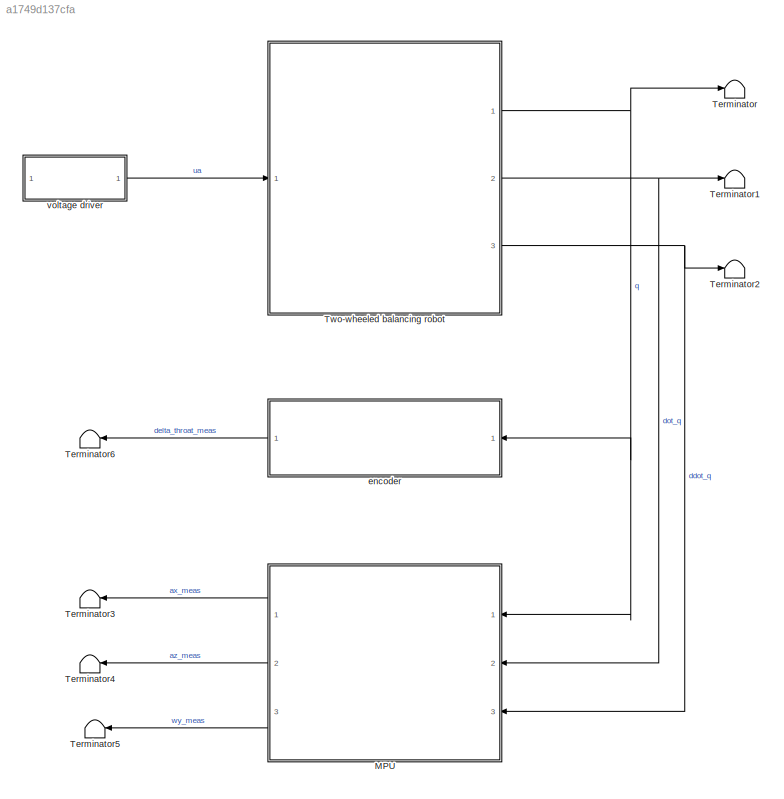
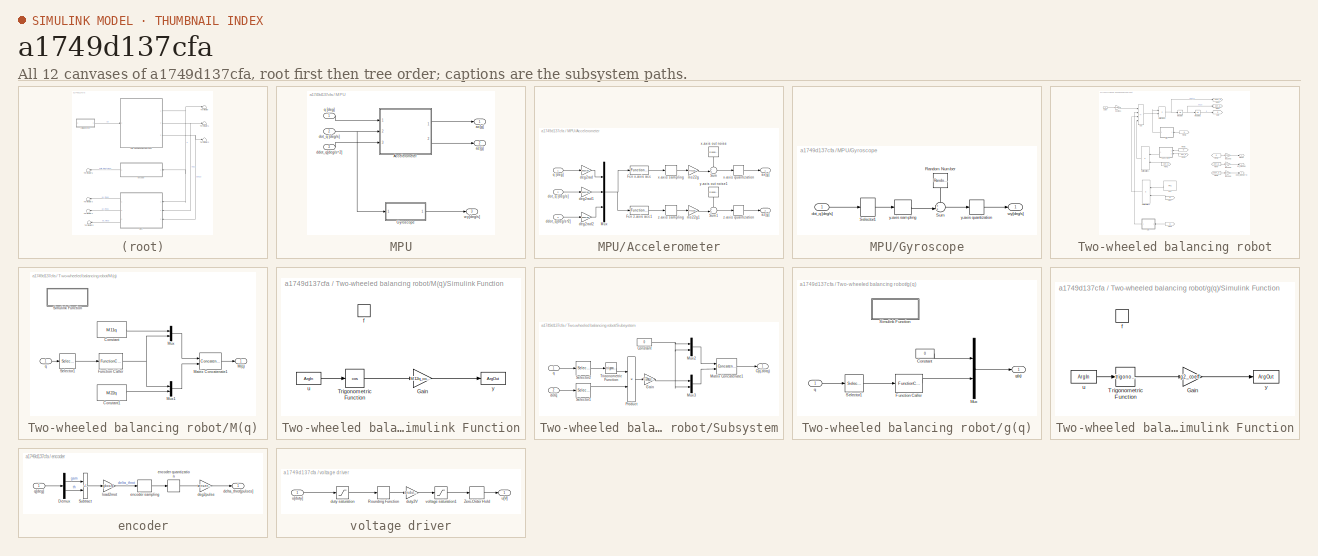
[diagram: thumbnail index - all 12 canvases of the model, root first then tree order]
MODEL slx_a1749d137cfa
KIND model
CONFIG AbsTol = auto
CONFIG EnableMultiTasking = off
CONFIG FixedStep = auto
CONFIG MaxStep = auto
CONFIG MinStep = auto
CONFIG RelTol = 1e-3
CONFIG SampleTimeConstraint = Unconstrained
CONFIG SolverName = VariableStepAuto
CONFIG StartTime = 0.0
CONFIG StopTime = 10.0
BLOCK [SubSystem] MPU
  Ports = [3, 3]
  RequestExecContextInheritance = off
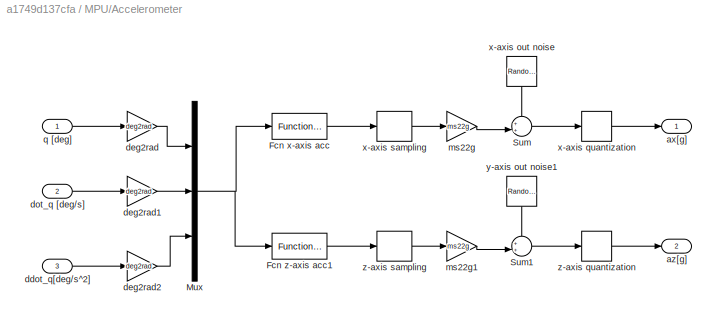
BLOCK [SubSystem] MPU/Accelerometer
  Ports = [3, 2]
  RequestExecContextInheritance = off
BLOCK [FunctionCaller] MPU/Accelerometer/Fcn x-axis acc
  FunctionPrototype = y = f(u)
  InputArgumentSpecifications = <Enter example>
  OutputArgumentSpecifications = <Enter example>
  Ports = [1, 1]
BLOCK [FunctionCaller] MPU/Accelerometer/Fcn z-axis acc1
  FunctionPrototype = y = f(u)
  InputArgumentSpecifications = <Enter example>
  OutputArgumentSpecifications = <Enter example>
  Ports = [1, 1]
BLOCK [Mux] MPU/Accelerometer/Mux
  DisplayOption = bar
  Inputs = 3
  Ports = [3, 1]
BLOCK [Sum] MPU/Accelerometer/Sum
  Inputs = ++|
  Ports = [2, 1]
BLOCK [Sum] MPU/Accelerometer/Sum1
  Inputs = ++|
  Ports = [2, 1]
BLOCK [Outport] MPU/Accelerometer/ax[g]
BLOCK [Outport] MPU/Accelerometer/az[g]
  Port = 2
BLOCK [Inport] MPU/Accelerometer/ddot_q[deg//s^2]
  Port = 3
BLOCK [Gain] MPU/Accelerometer/deg2rad
  Gain = deg2rad
BLOCK [Gain] MPU/Accelerometer/deg2rad1
  Gain = deg2rad
BLOCK [Gain] MPU/Accelerometer/deg2rad2
  Gain = deg2rad
BLOCK [Inport] MPU/Accelerometer/dot_q [deg//s]
  Port = 2
BLOCK [Gain] MPU/Accelerometer/ms22g
  Gain = ms22g
BLOCK [Gain] MPU/Accelerometer/ms22g1
  Gain = ms22g
BLOCK [Inport] MPU/Accelerometer/q [deg]
BLOCK [RandomNumber] MPU/Accelerometer/x-axis out noise
  NameLocation = left
  SampleTime = Ts
  Variance = sens.mpu.acc.noisevar
BLOCK [Quantizer] MPU/Accelerometer/x-axis quantization
  QuantizationInterval = sens.mpu.acc.LSB2g
BLOCK [ZeroOrderHold] MPU/Accelerometer/x-axis sampling
  SampleTime = Ts
BLOCK [RandomNumber] MPU/Accelerometer/y-axis out noise1
  NameLocation = left
  SampleTime = Ts
  Variance = sens.mpu.acc.noisevar
BLOCK [Quantizer] MPU/Accelerometer/z-axis quantization
  QuantizationInterval = sens.mpu.acc.LSB2g
BLOCK [ZeroOrderHold] MPU/Accelerometer/z-axis sampling
  SampleTime = Ts
BLOCK [SubSystem] MPU/Gyroscope
  Ports = [1, 1]
  RequestExecContextInheritance = off
BLOCK [RandomNumber] MPU/Gyroscope/Random Number
  NameLocation = left
  SampleTime = Ts
  Variance = sens.mpu.gyro.noisevar
BLOCK [Selector] MPU/Gyroscope/Selector1
  IndexOptions = Index vector (dialog)
  Indices = [1 3]
  InputPortWidth = 3
  OutputSizes = 1
  Ports = [1, 1]
BLOCK [Sum] MPU/Gyroscope/Sum
  Inputs = ++|
  Ports = [2, 1]
BLOCK [Inport] MPU/Gyroscope/dot_q [deg//s]
BLOCK [Outport] MPU/Gyroscope/wy[deg//s]
BLOCK [Quantizer] MPU/Gyroscope/y-axis quantization
  QuantizationInterval = sens.mpu.gyro.LSB2degs
BLOCK [ZeroOrderHold] MPU/Gyroscope/y-axis sampling
  SampleTime = Ts
BLOCK [Outport] MPU/ax[g]
BLOCK [Outport] MPU/az[g]
  Port = 2
BLOCK [Inport] MPU/ddot_q[deg//s^2]
  Port = 3
BLOCK [Inport] MPU/dot_q [deg//s]
  Port = 2
BLOCK [Inport] MPU/q [deg]
BLOCK [Outport] MPU/wy[deg//s]
  Port = 3
BLOCK [Terminator] Terminator
BLOCK [Terminator] Terminator1
BLOCK [Terminator] Terminator2
BLOCK [Terminator] Terminator3
BLOCK [Terminator] Terminator4
BLOCK [Terminator] Terminator5
BLOCK [Terminator] Terminator6
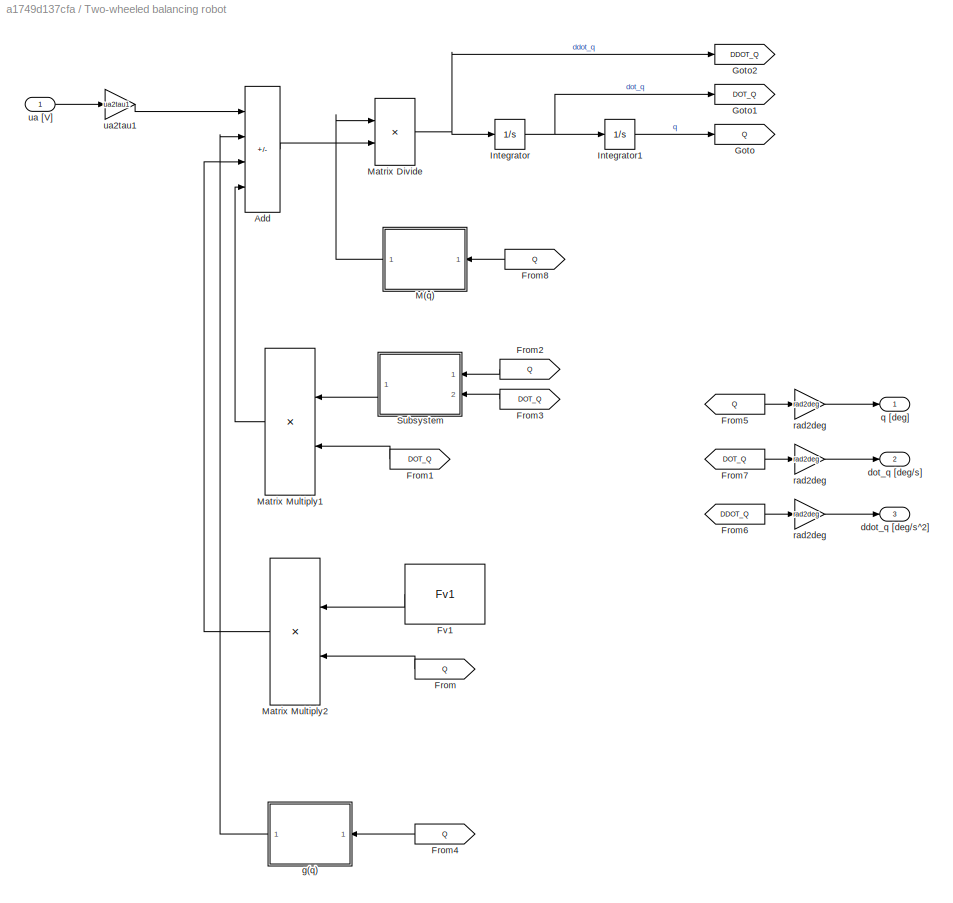
BLOCK [SubSystem] Two-wheeled balancing robot
  Ports = [1, 3]
  RequestExecContextInheritance = off
BLOCK [Sum] Two-wheeled balancing robot/Add
  IconShape = rectangular
  Inputs = +---
  Ports = [4, 1]
BLOCK [From] Two-wheeled balancing robot/From
  GotoTag = Q
BLOCK [From] Two-wheeled balancing robot/From1
  GotoTag = DOT_Q
BLOCK [From] Two-wheeled balancing robot/From2
  GotoTag = Q
BLOCK [From] Two-wheeled balancing robot/From3
  GotoTag = DOT_Q
BLOCK [From] Two-wheeled balancing robot/From4
  GotoTag = Q
BLOCK [From] Two-wheeled balancing robot/From5
  GotoTag = Q
BLOCK [From] Two-wheeled balancing robot/From6
  GotoTag = DDOT_Q
BLOCK [From] Two-wheeled balancing robot/From7
  GotoTag = DOT_Q
BLOCK [From] Two-wheeled balancing robot/From8
  GotoTag = Q
BLOCK [Constant] Two-wheeled balancing robot/Fv1
  Value = Fv1
BLOCK [Goto] Two-wheeled balancing robot/Goto
  GotoTag = Q
BLOCK [Goto] Two-wheeled balancing robot/Goto1
  GotoTag = DOT_Q
BLOCK [Goto] Two-wheeled balancing robot/Goto2
  GotoTag = DDOT_Q
BLOCK [Integrator] Two-wheeled balancing robot/Integrator
  Ports = [1, 1]
BLOCK [Integrator] Two-wheeled balancing robot/Integrator1
  Ports = [1, 1]
BLOCK [SubSystem] Two-wheeled balancing robot/M(q)
  Ports = [1, 1]
  RequestExecContextInheritance = off
BLOCK [Constant] Two-wheeled balancing robot/M(q)/Constant
  Value = M11q
BLOCK [Constant] Two-wheeled balancing robot/M(q)/Constant1
  Value = M22q
BLOCK [FunctionCaller] Two-wheeled balancing robot/M(q)/Function Caller
  FunctionPrototype = y = M12q(u)
  InputArgumentSpecifications = <Enter example>
  OutputArgumentSpecifications = <Enter example>
  Ports = [1, 1]
BLOCK [Outport] Two-wheeled balancing robot/M(q)/M(q)
BLOCK [Concatenate] Two-wheeled balancing robot/M(q)/Matrix Concatenate1
  ConcatenateDimension = 2
  Mode = Multidimensional array
  Ports = [2, 1]
BLOCK [Mux] Two-wheeled balancing robot/M(q)/Mux
  DisplayOption = bar
  Inputs = 2
  Ports = [2, 1]
BLOCK [Mux] Two-wheeled balancing robot/M(q)/Mux1
  DisplayOption = bar
  Inputs = 2
  Ports = [2, 1]
BLOCK [Selector] Two-wheeled balancing robot/M(q)/Selector1
  IndexOptions = Index vector (dialog)
  Indices = 2
  InputPortWidth = 2
  OutputSizes = 1
  Ports = [1, 1]
BLOCK [SubSystem] Two-wheeled balancing robot/M(q)/Simulink Function
  Ports = [0, 0, 0, 1]
  RequestExecContextInheritance = off
  TreatAsAtomicUnit = on
BLOCK [Gain] Two-wheeled balancing robot/M(q)/Simulink Function/Gain
  Gain = M12q_coeff
BLOCK [Trigonometry] Two-wheeled balancing robot/M(q)/Simulink Function/Trigonometric Function
  Operator = cos
  Ports = [1, 1]
BLOCK [TriggerPort] Two-wheeled balancing robot/M(q)/Simulink Function/f
  FunctionName = M12q
  FunctionVisibility = scoped
  IsSimulinkFunction = on
  Ports = []
  StatesWhenEnabling = held
  TriggerType = function-call
  VariantControl = (inherit)
BLOCK [ArgIn] Two-wheeled balancing robot/M(q)/Simulink Function/u
  ArgumentName = u
  DisableCoverage = on
BLOCK [ArgOut] Two-wheeled balancing robot/M(q)/Simulink Function/y
  ArgumentName = y
  DisableCoverage = on
BLOCK [Inport] Two-wheeled balancing robot/M(q)/q
BLOCK [Product] Two-wheeled balancing robot/Matrix Divide
  Inputs = /*
  Multiplication = Matrix(*)
  Ports = [2, 1]
BLOCK [Product] Two-wheeled balancing robot/Matrix Multiply1
  Multiplication = Matrix(*)
  Ports = [2, 1]
BLOCK [Product] Two-wheeled balancing robot/Matrix Multiply2
  Multiplication = Matrix(*)
  Ports = [2, 1]
BLOCK [SubSystem] Two-wheeled balancing robot/Subsystem
  Ports = [2, 1]
  RequestExecContextInheritance = off
BLOCK [Outport] Two-wheeled balancing robot/Subsystem/C(q,dotq)
BLOCK [Constant] Two-wheeled balancing robot/Subsystem/Constant
  Value = 0
BLOCK [Gain] Two-wheeled balancing robot/Subsystem/Gain
  Gain = C12qq_coeff
BLOCK [Concatenate] Two-wheeled balancing robot/Subsystem/Matrix Concatenate1
  ConcatenateDimension = 2
  Mode = Multidimensional array
  Ports = [2, 1]
BLOCK [Mux] Two-wheeled balancing robot/Subsystem/Mux2
  DisplayOption = bar
  Inputs = 2
  Ports = [2, 1]
BLOCK [Mux] Two-wheeled balancing robot/Subsystem/Mux3
  DisplayOption = bar
  Inputs = 2
  Ports = [2, 1]
BLOCK [Product] Two-wheeled balancing robot/Subsystem/Product
  Ports = [2, 1]
BLOCK [Selector] Two-wheeled balancing robot/Subsystem/Selector1
  IndexOptions = Index vector (dialog)
  Indices = 2
  InputPortWidth = 2
  OutputSizes = 1
  Ports = [1, 1]
BLOCK [Selector] Two-wheeled balancing robot/Subsystem/Selector2
  IndexOptions = Index vector (dialog)
  Indices = 2
  InputPortWidth = 2
  OutputSizes = 1
  Ports = [1, 1]
BLOCK [Trigonometry] Two-wheeled balancing robot/Subsystem/Trigonometric Function
  Ports = [1, 1]
BLOCK [Inport] Two-wheeled balancing robot/Subsystem/dotq
  Port = 2
BLOCK [Inport] Two-wheeled balancing robot/Subsystem/q
BLOCK [Outport] Two-wheeled balancing robot/ddot_q [deg//s^2]
  Port = 3
BLOCK [Outport] Two-wheeled balancing robot/dot_q [deg//s]
  Port = 2
BLOCK [SubSystem] Two-wheeled balancing robot/g(q)
  Ports = [1, 1]
  RequestExecContextInheritance = off
BLOCK [Constant] Two-wheeled balancing robot/g(q)/Constant
  Value = 0
BLOCK [FunctionCaller] Two-wheeled balancing robot/g(q)/Function Caller
  FunctionPrototype = y = g2(u)
  InputArgumentSpecifications = <Enter example>
  OutputArgumentSpecifications = <Enter example>
  Ports = [1, 1]
BLOCK [Mux] Two-wheeled balancing robot/g(q)/Mux
  DisplayOption = bar
  Inputs = 2
  Ports = [2, 1]
BLOCK [Selector] Two-wheeled balancing robot/g(q)/Selector1
  IndexOptions = Index vector (dialog)
  Indices = 2
  InputPortWidth = 2
  OutputSizes = 1
  Ports = [1, 1]
BLOCK [SubSystem] Two-wheeled balancing robot/g(q)/Simulink Function
  Ports = [0, 0, 0, 1]
  RequestExecContextInheritance = off
  TreatAsAtomicUnit = on
BLOCK [Gain] Two-wheeled balancing robot/g(q)/Simulink Function/Gain
  Gain = g2_coeff
BLOCK [Trigonometry] Two-wheeled balancing robot/g(q)/Simulink Function/Trigonometric Function
  Ports = [1, 1]
BLOCK [TriggerPort] Two-wheeled balancing robot/g(q)/Simulink Function/f
  FunctionName = g2
  FunctionVisibility = scoped
  IsSimulinkFunction = on
  Ports = []
  StatesWhenEnabling = held
  TriggerType = function-call
  VariantControl = (inherit)
BLOCK [ArgIn] Two-wheeled balancing robot/g(q)/Simulink Function/u
  ArgumentName = u
  DisableCoverage = on
BLOCK [ArgOut] Two-wheeled balancing robot/g(q)/Simulink Function/y
  ArgumentName = y
  DisableCoverage = on
BLOCK [Outport] Two-wheeled balancing robot/g(q)/g(q)
BLOCK [Inport] Two-wheeled balancing robot/g(q)/q
BLOCK [Outport] Two-wheeled balancing robot/q [deg]
BLOCK [Gain] Two-wheeled balancing robot/rad2deg
  Gain = rad2deg
BLOCK [Gain] Two-wheeled balancing robot/rad2deg 
  Gain = rad2deg
BLOCK [Gain] Two-wheeled balancing robot/rad2deg  
  Gain = rad2deg
BLOCK [Inport] Two-wheeled balancing robot/ua [V]
BLOCK [Gain] Two-wheeled balancing robot/ua2tau1
  Gain = ua2tau1
BLOCK [SubSystem] encoder
  Ports = [1, 1]
  RequestExecContextInheritance = off
BLOCK [Demux] encoder/Demux
  Outputs = 2
  Ports = [1, 2]
BLOCK [Sum] encoder/Subtract
  IconShape = rectangular
  Inputs = +-
  Ports = [2, 1]
BLOCK [Gain] encoder/deg2pulse
  Gain = sens.enc.deg2pulse
BLOCK [Outport] encoder/delta_throt[pulses]
BLOCK [Quantizer] encoder/encoder quantization
  QuantizationInterval = sens.enc.pulse2deg
BLOCK [ZeroOrderHold] encoder/encoder sampling
  SampleTime = Ts
BLOCK [Gain] encoder/load2mot
  Gain = gbox.N
BLOCK [Inport] encoder/q[deg]
BLOCK [SubSystem] voltage driver
  Ports = [1, 1]
  RequestExecContextInheritance = off
BLOCK [Rounding] voltage driver/Rounding Function
  Operator = fix
BLOCK [ZeroOrderHold] voltage driver/Zero-Order Hold
  SampleTime = Ts
BLOCK [Saturate] voltage driver/duty saturation
  LowerLimit = -drv.dutymax
  UpperLimit = drv.dutymax
BLOCK [Gain] voltage driver/duty2V
  Gain = drv.duty2V
BLOCK [Outport] voltage driver/u[V]
BLOCK [Inport] voltage driver/u[duty]
BLOCK [Saturate] voltage driver/voltage saturation1
  LowerLimit = -drv.Vbus
  UpperLimit = drv.Vbus
LINE MPU/Accelerometer/Fcn x-axis acc:1 -> MPU/Accelerometer/x-axis sampling:1
LINE MPU/Accelerometer/Fcn z-axis acc1:1 -> MPU/Accelerometer/z-axis sampling:1
NET MPU/Accelerometer/Mux:1 -> MPU/Accelerometer/Fcn x-axis acc:1, MPU/Accelerometer/Fcn z-axis acc1:1
LINE MPU/Accelerometer/Sum1:1 -> MPU/Accelerometer/z-axis quantization:1
LINE MPU/Accelerometer/Sum:1 -> MPU/Accelerometer/x-axis quantization:1
LINE MPU/Accelerometer/ddot_q[deg//s^2]:1 -> MPU/Accelerometer/deg2rad2:1
LINE MPU/Accelerometer/deg2rad1:1 -> MPU/Accelerometer/Mux:2
LINE MPU/Accelerometer/deg2rad2:1 -> MPU/Accelerometer/Mux:3
LINE MPU/Accelerometer/deg2rad:1 -> MPU/Accelerometer/Mux:1
LINE MPU/Accelerometer/dot_q [deg//s]:1 -> MPU/Accelerometer/deg2rad1:1
LINE MPU/Accelerometer/ms22g1:1 -> MPU/Accelerometer/Sum1:2
LINE MPU/Accelerometer/ms22g:1 -> MPU/Accelerometer/Sum:2
LINE MPU/Accelerometer/q [deg]:1 -> MPU/Accelerometer/deg2rad:1
LINE MPU/Accelerometer/x-axis out noise:1 -> MPU/Accelerometer/Sum:1
LINE MPU/Accelerometer/x-axis quantization:1 -> MPU/Accelerometer/ax[g]:1
LINE MPU/Accelerometer/x-axis sampling:1 -> MPU/Accelerometer/ms22g:1
LINE MPU/Accelerometer/y-axis out noise1:1 -> MPU/Accelerometer/Sum1:1
LINE MPU/Accelerometer/z-axis quantization:1 -> MPU/Accelerometer/az[g]:1
LINE MPU/Accelerometer/z-axis sampling:1 -> MPU/Accelerometer/ms22g1:1
LINE MPU/Accelerometer:1 -> MPU/ax[g]:1
LINE MPU/Accelerometer:2 -> MPU/az[g]:1
LINE MPU/Gyroscope/Random Number:1 -> MPU/Gyroscope/Sum:1
LINE MPU/Gyroscope/Selector1:1 -> MPU/Gyroscope/y-axis sampling:1
LINE MPU/Gyroscope/Sum:1 -> MPU/Gyroscope/y-axis quantization:1
LINE MPU/Gyroscope/dot_q [deg//s]:1 -> MPU/Gyroscope/Selector1:1
LINE MPU/Gyroscope/y-axis quantization:1 -> MPU/Gyroscope/wy[deg//s]:1
LINE MPU/Gyroscope/y-axis sampling:1 -> MPU/Gyroscope/Sum:2
LINE MPU/Gyroscope:1 -> MPU/wy[deg//s]:1
LINE MPU/ddot_q[deg//s^2]:1 -> MPU/Accelerometer:3
NET MPU/dot_q [deg//s]:1 -> MPU/Accelerometer:2, MPU/Gyroscope:1
LINE MPU/q [deg]:1 -> MPU/Accelerometer:1
LINE MPU:1 -> Terminator3:1
LINE MPU:2 -> Terminator4:1
LINE MPU:3 -> Terminator5:1
LINE Two-wheeled balancing robot/Add:1 -> Two-wheeled balancing robot/Matrix Divide:2
LINE Two-wheeled balancing robot/From1:1 -> Two-wheeled balancing robot/Matrix Multiply1:2
LINE Two-wheeled balancing robot/From2:1 -> Two-wheeled balancing robot/Subsystem:1
LINE Two-wheeled balancing robot/From3:1 -> Two-wheeled balancing robot/Subsystem:2
LINE Two-wheeled balancing robot/From4:1 -> Two-wheeled balancing robot/g(q):1
LINE Two-wheeled balancing robot/From5:1 -> Two-wheeled balancing robot/rad2deg:1
LINE Two-wheeled balancing robot/From6:1 -> Two-wheeled balancing robot/rad2deg :1
LINE Two-wheeled balancing robot/From7:1 -> Two-wheeled balancing robot/rad2deg  :1
LINE Two-wheeled balancing robot/From8:1 -> Two-wheeled balancing robot/M(q):1
LINE Two-wheeled balancing robot/From:1 -> Two-wheeled balancing robot/Matrix Multiply2:2
LINE Two-wheeled balancing robot/Fv1:1 -> Two-wheeled balancing robot/Matrix Multiply2:1
LINE Two-wheeled balancing robot/Integrator1:1 -> Two-wheeled balancing robot/Goto:1
NET Two-wheeled balancing robot/Integrator:1 -> Two-wheeled balancing robot/Goto1:1, Two-wheeled balancing robot/Integrator1:1
LINE Two-wheeled balancing robot/M(q)/Constant1:1 -> Two-wheeled balancing robot/M(q)/Mux1:2
LINE Two-wheeled balancing robot/M(q)/Constant:1 -> Two-wheeled balancing robot/M(q)/Mux:1
NET Two-wheeled balancing robot/M(q)/Function Caller:1 -> Two-wheeled balancing robot/M(q)/Mux1:1, Two-wheeled balancing robot/M(q)/Mux:2
LINE Two-wheeled balancing robot/M(q)/Matrix Concatenate1:1 -> Two-wheeled balancing robot/M(q)/M(q):1
LINE Two-wheeled balancing robot/M(q)/Mux1:1 -> Two-wheeled balancing robot/M(q)/Matrix Concatenate1:2
LINE Two-wheeled balancing robot/M(q)/Mux:1 -> Two-wheeled balancing robot/M(q)/Matrix Concatenate1:1
LINE Two-wheeled balancing robot/M(q)/Selector1:1 -> Two-wheeled balancing robot/M(q)/Function Caller:1
LINE Two-wheeled balancing robot/M(q)/Simulink Function/Gain:1 -> Two-wheeled balancing robot/M(q)/Simulink Function/y:1
LINE Two-wheeled balancing robot/M(q)/Simulink Function/Trigonometric Function:1 -> Two-wheeled balancing robot/M(q)/Simulink Function/Gain:1
LINE Two-wheeled balancing robot/M(q)/Simulink Function/u:1 -> Two-wheeled balancing robot/M(q)/Simulink Function/Trigonometric Function:1
LINE Two-wheeled balancing robot/M(q)/q:1 -> Two-wheeled balancing robot/M(q)/Selector1:1
LINE Two-wheeled balancing robot/M(q):1 -> Two-wheeled balancing robot/Matrix Divide:1
NET Two-wheeled balancing robot/Matrix Divide:1 -> Two-wheeled balancing robot/Goto2:1, Two-wheeled balancing robot/Integrator:1
LINE Two-wheeled balancing robot/Matrix Multiply1:1 -> Two-wheeled balancing robot/Add:4
LINE Two-wheeled balancing robot/Matrix Multiply2:1 -> Two-wheeled balancing robot/Add:3
NET Two-wheeled balancing robot/Subsystem/Constant:1 -> Two-wheeled balancing robot/Subsystem/Mux2:1, Two-wheeled balancing robot/Subsystem/Mux2:2, Two-wheeled balancing robot/Subsystem/Mux3:2
LINE Two-wheeled balancing robot/Subsystem/Gain:1 -> Two-wheeled balancing robot/Subsystem/Mux3:1
LINE Two-wheeled balancing robot/Subsystem/Matrix Concatenate1:1 -> Two-wheeled balancing robot/Subsystem/C(q,dotq):1
LINE Two-wheeled balancing robot/Subsystem/Mux2:1 -> Two-wheeled balancing robot/Subsystem/Matrix Concatenate1:1
LINE Two-wheeled balancing robot/Subsystem/Mux3:1 -> Two-wheeled balancing robot/Subsystem/Matrix Concatenate1:2
LINE Two-wheeled balancing robot/Subsystem/Product:1 -> Two-wheeled balancing robot/Subsystem/Gain:1
LINE Two-wheeled balancing robot/Subsystem/Selector1:1 -> Two-wheeled balancing robot/Subsystem/Product:2
LINE Two-wheeled balancing robot/Subsystem/Selector2:1 -> Two-wheeled balancing robot/Subsystem/Trigonometric Function:1
LINE Two-wheeled balancing robot/Subsystem/Trigonometric Function:1 -> Two-wheeled balancing robot/Subsystem/Product:1
LINE Two-wheeled balancing robot/Subsystem/dotq:1 -> Two-wheeled balancing robot/Subsystem/Selector1:1
LINE Two-wheeled balancing robot/Subsystem/q:1 -> Two-wheeled balancing robot/Subsystem/Selector2:1
LINE Two-wheeled balancing robot/Subsystem:1 -> Two-wheeled balancing robot/Matrix Multiply1:1
LINE Two-wheeled balancing robot/g(q)/Constant:1 -> Two-wheeled balancing robot/g(q)/Mux:1
LINE Two-wheeled balancing robot/g(q)/Function Caller:1 -> Two-wheeled balancing robot/g(q)/Mux:2
LINE Two-wheeled balancing robot/g(q)/Mux:1 -> Two-wheeled balancing robot/g(q)/g(q):1
LINE Two-wheeled balancing robot/g(q)/Selector1:1 -> Two-wheeled balancing robot/g(q)/Function Caller:1
LINE Two-wheeled balancing robot/g(q)/Simulink Function/Gain:1 -> Two-wheeled balancing robot/g(q)/Simulink Function/y:1
LINE Two-wheeled balancing robot/g(q)/Simulink Function/Trigonometric Function:1 -> Two-wheeled balancing robot/g(q)/Simulink Function/Gain:1
LINE Two-wheeled balancing robot/g(q)/Simulink Function/u:1 -> Two-wheeled balancing robot/g(q)/Simulink Function/Trigonometric Function:1
LINE Two-wheeled balancing robot/g(q)/q:1 -> Two-wheeled balancing robot/g(q)/Selector1:1
LINE Two-wheeled balancing robot/g(q):1 -> Two-wheeled balancing robot/Add:2
LINE Two-wheeled balancing robot/rad2deg  :1 -> Two-wheeled balancing robot/dot_q [deg//s]:1
LINE Two-wheeled balancing robot/rad2deg :1 -> Two-wheeled balancing robot/ddot_q [deg//s^2]:1
LINE Two-wheeled balancing robot/rad2deg:1 -> Two-wheeled balancing robot/q [deg]:1
LINE Two-wheeled balancing robot/ua [V]:1 -> Two-wheeled balancing robot/ua2tau1:1
LINE Two-wheeled balancing robot/ua2tau1:1 -> Two-wheeled balancing robot/Add:1
NET Two-wheeled balancing robot:1 -> MPU:1, Terminator:1, encoder:1
NET Two-wheeled balancing robot:2 -> MPU:2, Terminator1:1
NET Two-wheeled balancing robot:3 -> MPU:3, Terminator2:1
LINE encoder/Demux:1 -> encoder/Subtract:1
LINE encoder/Demux:2 -> encoder/Subtract:2
LINE encoder/Subtract:1 -> encoder/load2mot:1
LINE encoder/deg2pulse:1 -> encoder/delta_throt[pulses]:1
LINE encoder/encoder quantization:1 -> encoder/deg2pulse:1
LINE encoder/encoder sampling:1 -> encoder/encoder quantization:1
LINE encoder/load2mot:1 -> encoder/encoder sampling:1
LINE encoder/q[deg]:1 -> encoder/Demux:1
LINE encoder:1 -> Terminator6:1
LINE voltage driver/Rounding Function:1 -> voltage driver/duty2V:1
LINE voltage driver/Zero-Order Hold:1 -> voltage driver/u[V]:1
LINE voltage driver/duty saturation:1 -> voltage driver/Rounding Function:1
LINE voltage driver/duty2V:1 -> voltage driver/voltage saturation1:1
LINE voltage driver/u[duty]:1 -> voltage driver/duty saturation:1
LINE voltage driver/voltage saturation1:1 -> voltage driver/Zero-Order Hold:1
LINE voltage driver:1 -> Two-wheeled balancing robot:1
note: NET lines group one-source signal fan-out (src -> all destinations, sorted); 1:1 wires keep LINE
